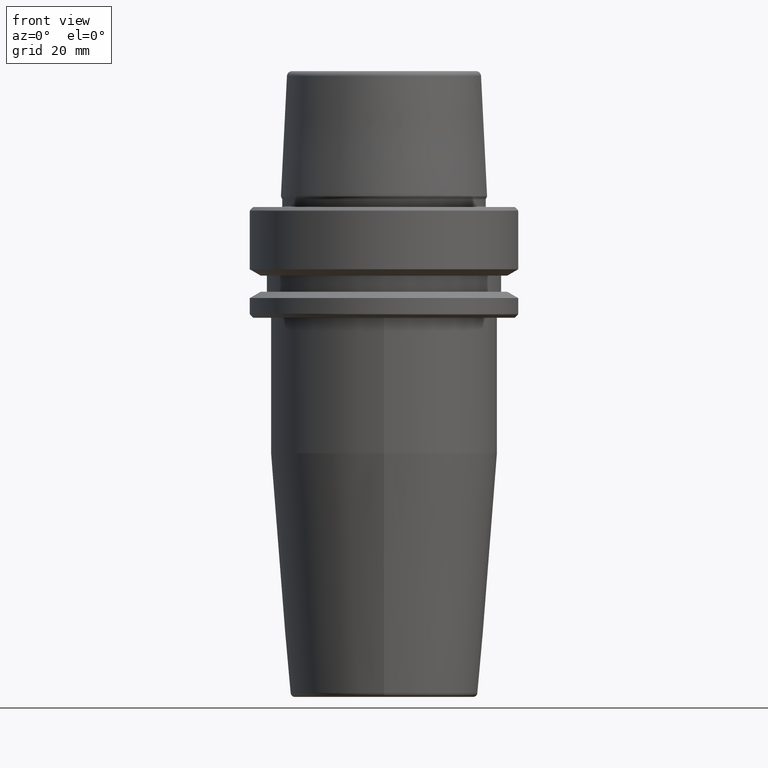
[diagram: clean part render]
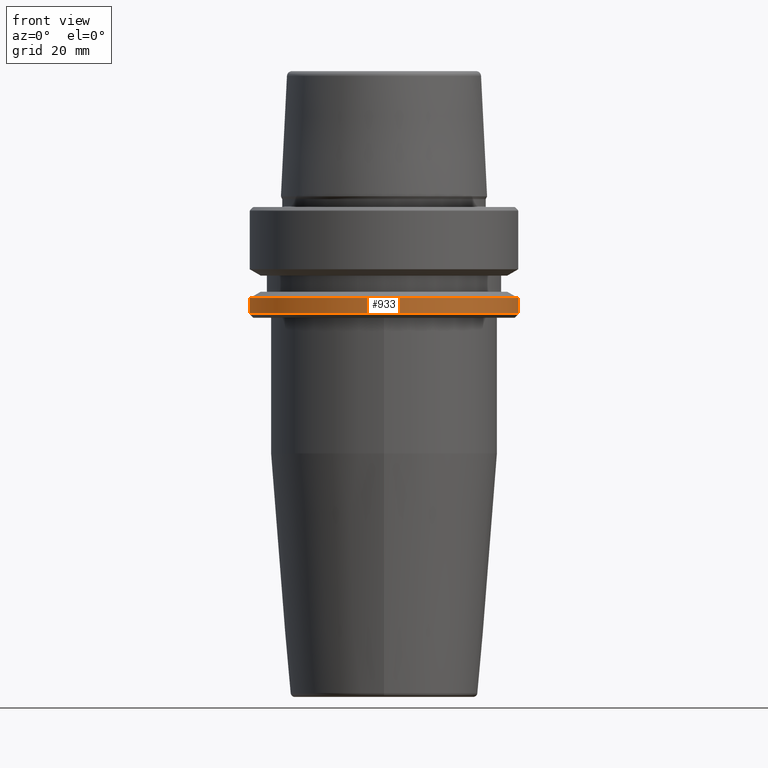
[diagram: same view with one face highlighted and labeled with its STEP entity id]
A machine part, front view. The second image highlights one B-rep face of the part: STEP entity #933.
In plain terms, the highlighted cylindrical surface (partial cylindrical patch) has radius 31.5 mm, axis along (-0, -0, 1).
Its self-contained STEP definition (entity closure, byte-faithful):
#59 = VERTEX_POINT ( 'NONE', #1242 ) ;
#86 = VERTEX_POINT ( 'NONE', #922 ) ;
#99 = DIRECTION ( 'NONE',  ( -0.0000000000000000000, -0.0000000000000000000, 1.000000000000000000 ) ) ;
#105 = CYLINDRICAL_SURFACE ( 'NONE', #1241, 31.50000000000000000 ) ;
#134 = FACE_OUTER_BOUND ( 'NONE', #887, .T. ) ;
#154 = CARTESIAN_POINT ( 'NONE',  ( 0.0000000000000000000, 0.0000000000000000000, -21.37749907475931700 ) ) ;
#231 = LINE ( 'NONE', #773, #1233 ) ;
#236 = DIRECTION ( 'NONE',  ( -0.0000000000000000000, -0.0000000000000000000, 1.000000000000000000 ) ) ;
#275 = VECTOR ( 'NONE', #236, 1000.000000000000000 ) ;
#305 = CARTESIAN_POINT ( 'NONE',  ( 31.50000000000000000, 0.0000000000000000000, 78.96908074195309300 ) ) ;
#375 = ORIENTED_EDGE ( 'NONE', *, *, #942, .F. ) ;
#380 = CARTESIAN_POINT ( 'NONE',  ( 0.0000000000000000000, 0.0000000000000000000, 78.96908074195309300 ) ) ;
#431 = DIRECTION ( 'NONE',  ( -0.0000000000000000000, -0.0000000000000000000, 1.000000000000000000 ) ) ;
#446 = VERTEX_POINT ( 'NONE', #594 ) ;
#499 = AXIS2_PLACEMENT_3D ( 'NONE', #1205, #431, #522 ) ;
#522 = DIRECTION ( 'NONE',  ( 1.000000000000000000, 0.0000000000000000000, 0.0000000000000000000 ) ) ;
#524 = LINE ( 'NONE', #305, #275 ) ;
#538 = CARTESIAN_POINT ( 'NONE',  ( 31.50000000000000000, 0.0000000000000000000, -21.37749907475931700 ) ) ;
#594 = CARTESIAN_POINT ( 'NONE',  ( -31.50000000000000000, 3.857637417314161900E-015, -25.03431457505077200 ) ) ;
#731 = DIRECTION ( 'NONE',  ( -0.0000000000000000000, -0.0000000000000000000, 1.000000000000000000 ) ) ;
#773 = CARTESIAN_POINT ( 'NONE',  ( -31.50000000000000000, 3.857637417314162700E-015, 78.96908074195309300 ) ) ;
#824 = DIRECTION ( 'NONE',  ( -0.0000000000000000000, -0.0000000000000000000, 1.000000000000000000 ) ) ;
#833 = ORIENTED_EDGE ( 'NONE', *, *, #1082, .T. ) ;
#834 = DIRECTION ( 'NONE',  ( 1.000000000000000000, 0.0000000000000000000, 0.0000000000000000000 ) ) ;
#848 = CIRCLE ( 'NONE', #1108, 31.50000000000000000 ) ;
#855 = DIRECTION ( 'NONE',  ( 1.000000000000000000, 0.0000000000000000000, 0.0000000000000000000 ) ) ;
#859 = ORIENTED_EDGE ( 'NONE', *, *, #1017, .F. ) ;
#887 = EDGE_LOOP ( 'NONE', ( #859, #833, #1077, #375 ) ) ;
#922 = CARTESIAN_POINT ( 'NONE',  ( 31.50000000000000000, 0.0000000000000000000, -25.03431457505077200 ) ) ;
#933 = ADVANCED_FACE ( 'NONE', ( #134 ), #105, .T. ) ;
#942 = EDGE_CURVE ( 'NONE', #59, #950, #848, .T. ) ;
#950 = VERTEX_POINT ( 'NONE', #538 ) ;
#1017 = EDGE_CURVE ( 'NONE', #446, #59, #231, .T. ) ;
#1077 = ORIENTED_EDGE ( 'NONE', *, *, #1193, .T. ) ;
#1082 = EDGE_CURVE ( 'NONE', #446, #86, #1201, .T. ) ;
#1108 = AXIS2_PLACEMENT_3D ( 'NONE', #154, #731, #834 ) ;
#1193 = EDGE_CURVE ( 'NONE', #86, #950, #524, .T. ) ;
#1201 = CIRCLE ( 'NONE', #499, 31.50000000000000000 ) ;
#1205 = CARTESIAN_POINT ( 'NONE',  ( 0.0000000000000000000, 0.0000000000000000000, -25.03431457505077200 ) ) ;
#1233 = VECTOR ( 'NONE', #824, 1000.000000000000000 ) ;
#1241 = AXIS2_PLACEMENT_3D ( 'NONE', #380, #99, #855 ) ;
#1242 = CARTESIAN_POINT ( 'NONE',  ( -31.50000000000000000, 3.857637417314162700E-015, -21.37749907475931700 ) ) ;